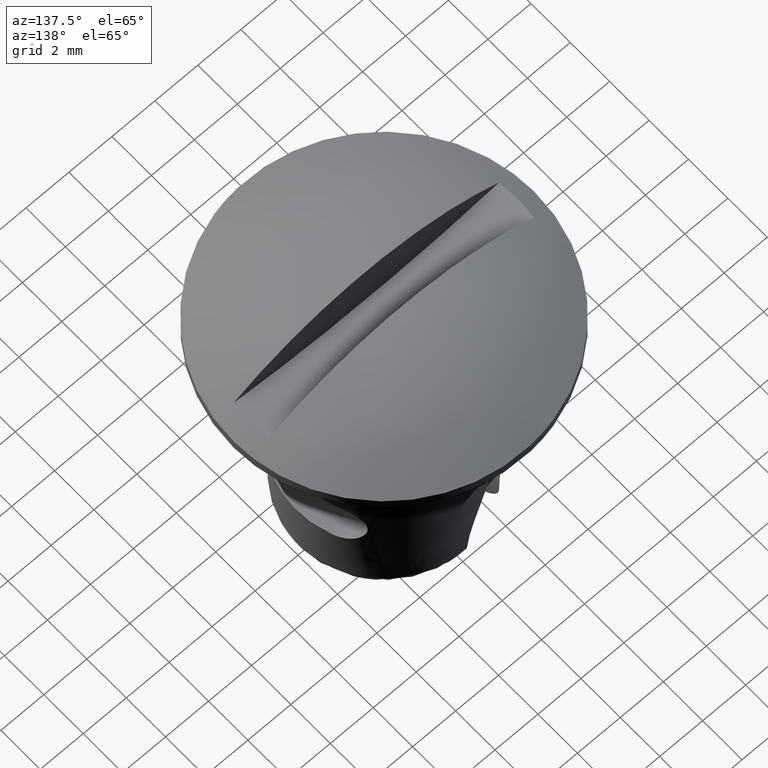
[diagram: clean part render]
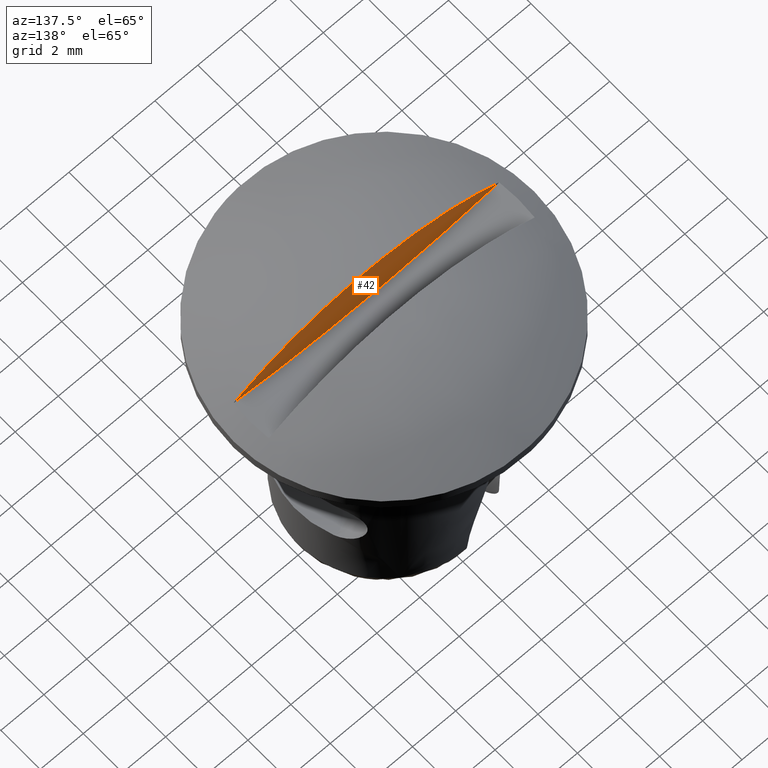
[diagram: same view with one face highlighted and labeled with its STEP entity id]
A machine part, auxiliary view. The second image highlights one B-rep face of the part: STEP entity #42.
In plain terms, the highlighted face is a freeform B-spline surface patch.
Its self-contained STEP definition (entity closure, byte-faithful):
#5=CARTESIAN_POINT('',(-6.806335452003895,-0.899993000000000,2.878811643336095));
#6=CARTESIAN_POINT('',(6.806335783961607,-0.899993000000000,2.878811643336095));
#7=CARTESIAN_POINT('',(-6.806335452003895,-0.899993000000000,0.386831086244028));
#8=CARTESIAN_POINT('',(6.806335783961607,-0.899993000000000,0.386831086244028));
#9=B_SPLINE_SURFACE_WITH_KNOTS('',1,1,((#5,#7),(#6,#8)),.UNSPECIFIED.,.F.,.F.,.U.,(2,2),(2,2),(0.0,13.612671235965500),(0.0,2.491980557092067),.UNSPECIFIED.);
#10=CARTESIAN_POINT('',(-6.188140263652630,-0.899993000000000,1.007241764877300));
#11=VERTEX_POINT('',#10);
#12=CARTESIAN_POINT('',(6.188140263652630,-0.899993000000000,1.007241764877300));
#13=VERTEX_POINT('',#12);
#14=CARTESIAN_POINT('',(-6.188140263652636,-0.899992999999988,1.007241764877299));
#15=CARTESIAN_POINT('',(-9.540979E-015,-0.899992999999988,-0.014104269002023));
#16=CARTESIAN_POINT('',(6.188140263652626,-0.899992999999988,1.007241764877299));
#24=(BOUNDED_CURVE()B_SPLINE_CURVE(2,(#14,#15,#16),.UNSPECIFIED.,.F.,.U.)CURVE()GEOMETRIC_REPRESENTATION_ITEM()QUASI_UNIFORM_CURVE()RATIONAL_B_SPLINE_CURVE((1.0,0.986651532503229,1.0))REPRESENTATION_ITEM(''));
#25=EDGE_CURVE('',#11,#13,#24,.T.);
#26=ORIENTED_EDGE('',*,*,#25,.F.);
#27=CARTESIAN_POINT('',(6.188140263652638,-0.899993000000000,1.007241764877301));
#28=CARTESIAN_POINT('',(4.336809E-015,-0.899993000000000,4.832950620201165));
#29=CARTESIAN_POINT('',(-6.188140263652632,-0.899993000000000,1.007241764877305));
#37=(BOUNDED_CURVE()B_SPLINE_CURVE(2,(#27,#28,#29),.UNSPECIFIED.,.F.,.U.)CURVE()GEOMETRIC_REPRESENTATION_ITEM()QUASI_UNIFORM_CURVE()RATIONAL_B_SPLINE_CURVE((1.0,0.850575323171964,1.0))REPRESENTATION_ITEM(''));
#38=EDGE_CURVE('',#13,#11,#37,.T.);
#39=ORIENTED_EDGE('',*,*,#38,.F.);
#40=EDGE_LOOP('',(#26,#39));
#41=FACE_OUTER_BOUND('',#40,.T.);
#42=ADVANCED_FACE('',(#41),#9,.T.);